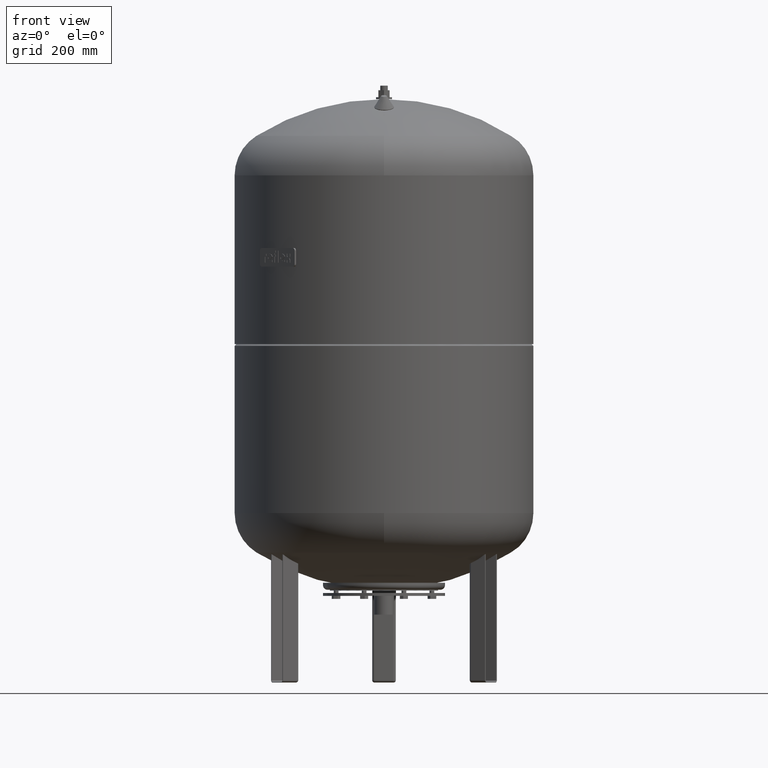
[diagram: clean part render]
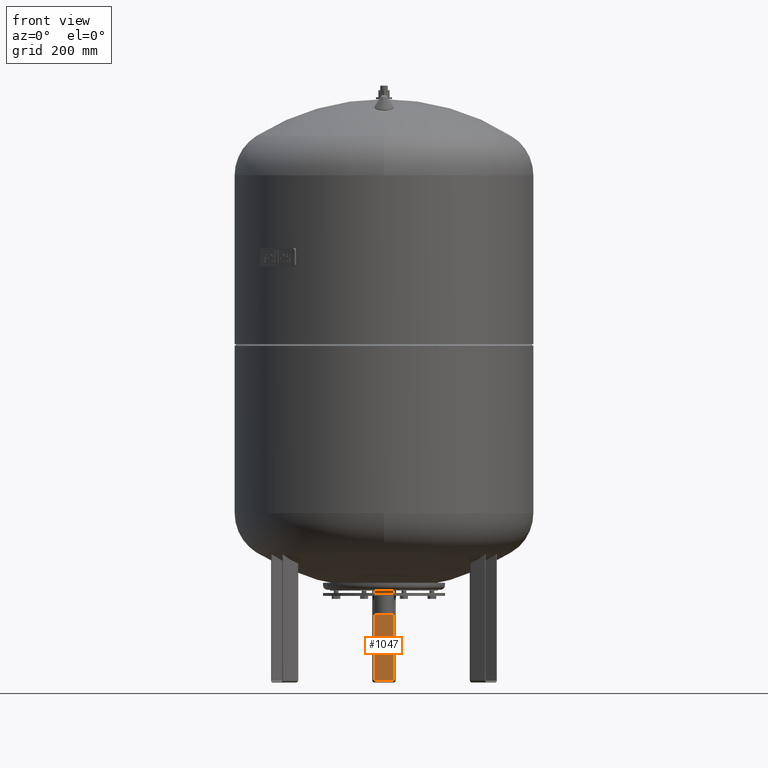
[diagram: same view with one face highlighted and labeled with its STEP entity id]
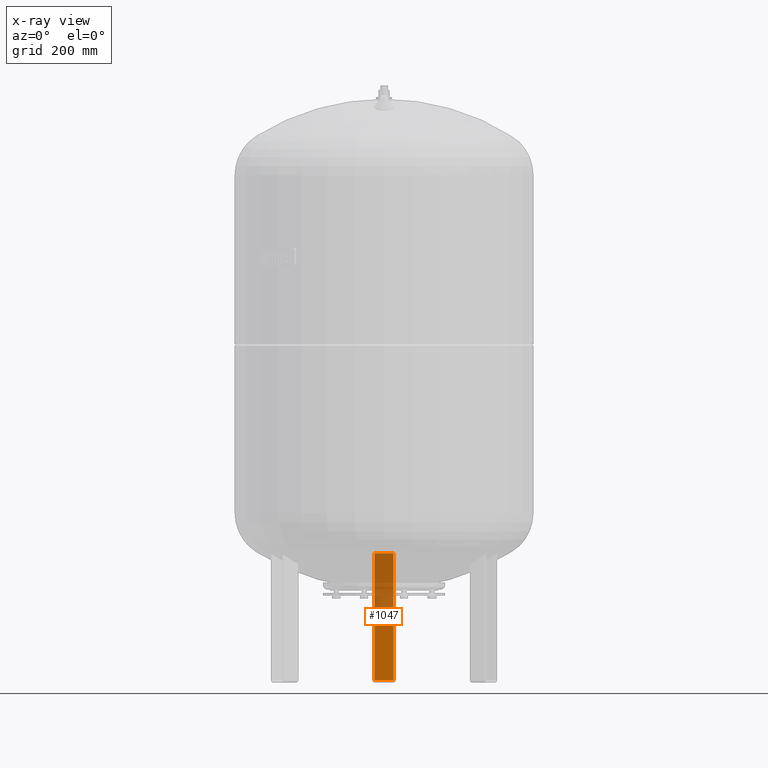
[diagram: x-ray of the same camera — body ghosted, the highlighted face saturated]
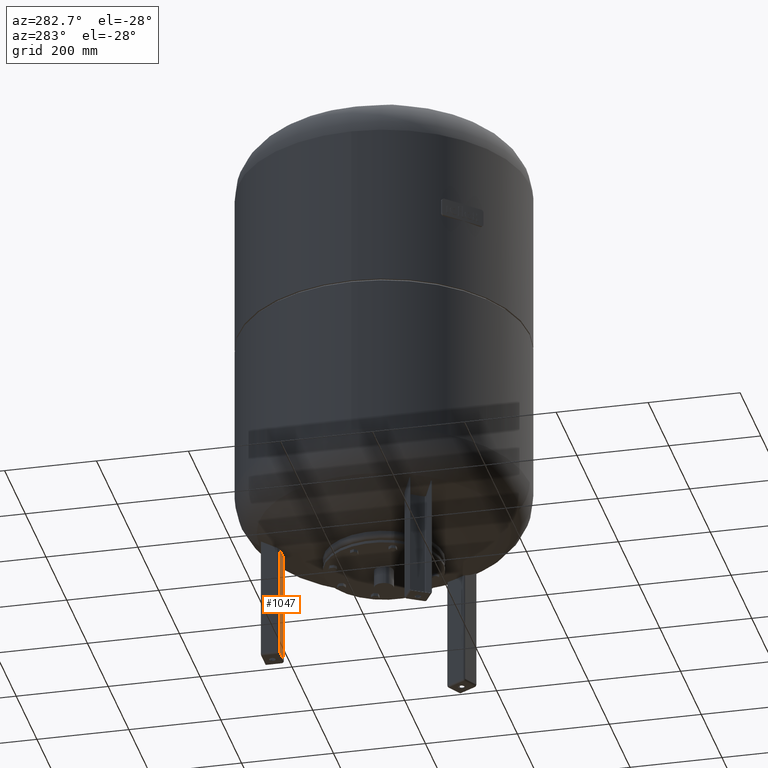
[diagram: same view with one face highlighted and labeled with its STEP entity id]
A machine part, front view. The second image highlights one B-rep face of the part: STEP entity #1047.
The next image is the same camera in x-ray: the body ghosted, the highlighted face saturated — about 46% of this face is hidden behind the body in this view.
A second angle (auxiliary view) of the same face is appended — the face is thin or edge-on in the first view.
In plain terms, the highlighted planar face has unit normal (0, -1, 0).
Its self-contained STEP definition (entity closure, byte-faithful):
#267=CARTESIAN_POINT('',(-20.0,222.500000000000000,274.0));
#268=VERTEX_POINT('',#267);
#276=CARTESIAN_POINT('',(20.0,222.500000000000000,274.0));
#277=VERTEX_POINT('',#276);
#278=CARTESIAN_POINT('',(20.0,222.500000000000000,274.0));
#279=DIRECTION('',(-1.0,0.0,0.0));
#280=VECTOR('',#279,40.0);
#281=LINE('',#278,#280);
#282=EDGE_CURVE('',#277,#268,#281,.T.);
#912=CARTESIAN_POINT('',(20.000000000000004,222.500000000000000,4.999999999999996));
#913=VERTEX_POINT('',#912);
#921=CARTESIAN_POINT('',(-19.999999999999996,222.500000000000000,5.000000000000004));
#922=VERTEX_POINT('',#921);
#923=CARTESIAN_POINT('',(20.000000000000004,222.500000000000000,4.999999999999996));
#924=DIRECTION('',(-1.0,0.0,0.0));
#925=VECTOR('',#924,40.0);
#926=LINE('',#923,#925);
#927=EDGE_CURVE('',#913,#922,#926,.T.);
#1015=CARTESIAN_POINT('',(-19.999999999999996,222.500000000000000,5.000000000000004));
#1016=DIRECTION('',(0.0,0.0,1.0));
#1017=VECTOR('',#1016,269.0);
#1018=LINE('',#1015,#1017);
#1019=EDGE_CURVE('',#922,#268,#1018,.T.);
#1031=CARTESIAN_POINT('',(25.000000000000004,222.500000000000000,-4.592425E-015));
#1032=DIRECTION('',(0.0,-1.0,0.0));
#1033=DIRECTION('',(1.0,0.0,0.0));
#1034=AXIS2_PLACEMENT_3D('',#1031,#1032,#1033);
#1035=PLANE('',#1034);
#1036=ORIENTED_EDGE('',*,*,#927,.F.);
#1037=CARTESIAN_POINT('',(20.000000000000004,222.500000000000000,4.999999999999996));
#1038=DIRECTION('',(0.0,0.0,1.0));
#1039=VECTOR('',#1038,269.0);
#1040=LINE('',#1037,#1039);
#1041=EDGE_CURVE('',#913,#277,#1040,.T.);
#1042=ORIENTED_EDGE('',*,*,#1041,.T.);
#1043=ORIENTED_EDGE('',*,*,#282,.T.);
#1044=ORIENTED_EDGE('',*,*,#1019,.F.);
#1045=EDGE_LOOP('',(#1036,#1042,#1043,#1044));
#1046=FACE_OUTER_BOUND('',#1045,.T.);
#1047=ADVANCED_FACE('',(#1046),#1035,.T.);